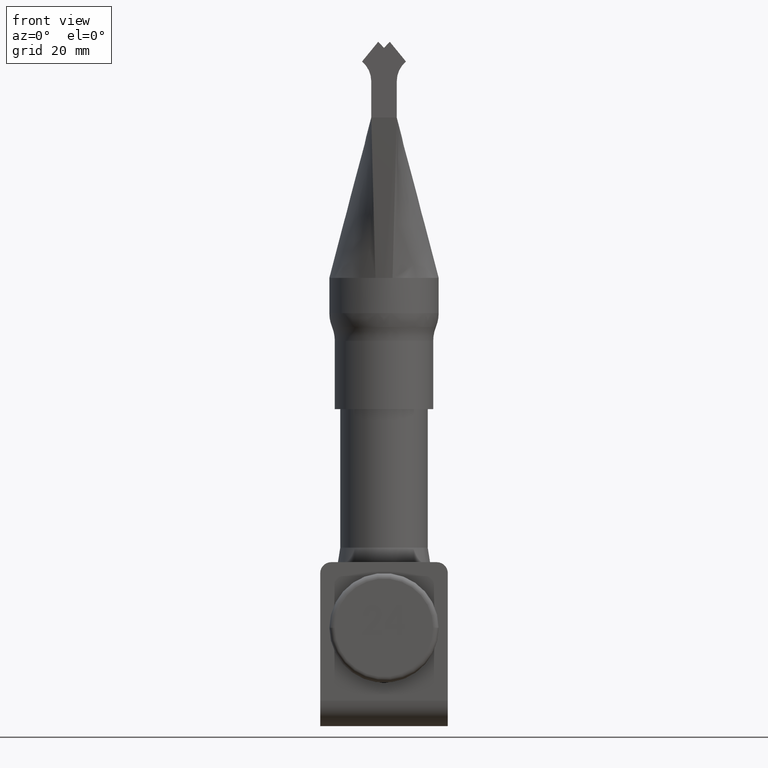
[diagram: clean part render]
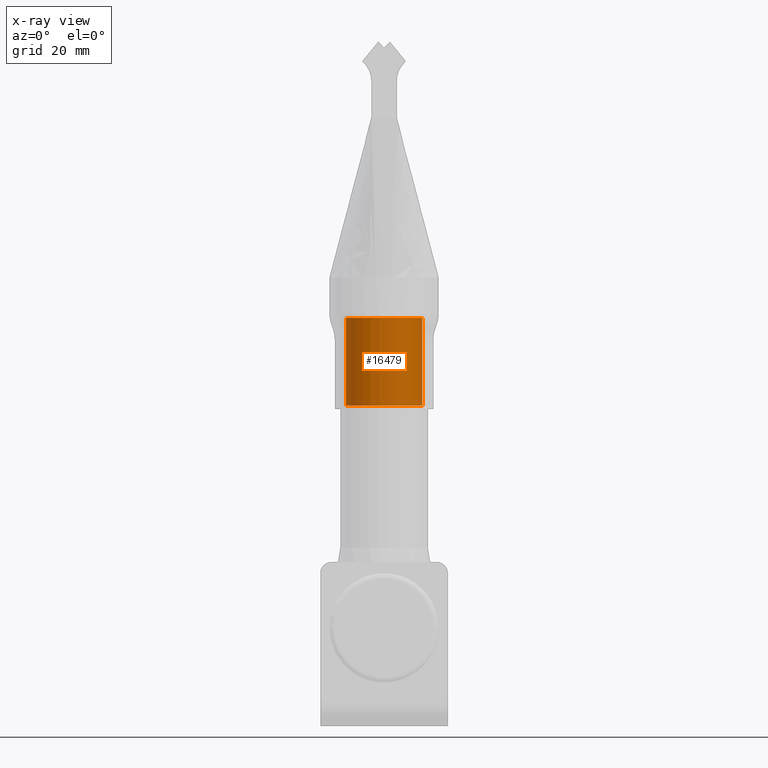
[diagram: x-ray — body ghosted, one internal face saturated and labeled with its STEP entity id]
A machine part, front view, then the same camera in x-ray: the body is ghosted and one INTERNAL B-rep face — a face not visible from any outside direction — is saturated and labeled: STEP entity #16479.
In plain terms, the highlighted cylindrical surface (partial cylindrical patch) has radius 10.5 mm, axis along (-0, -0, -1).
Its self-contained STEP definition (entity closure, byte-faithful):
#28 = AXIS2_PLACEMENT_3D ( 'NONE', #18074, #10447, #13994 ) ;
#185 = CARTESIAN_POINT ( 'NONE',  ( -10.49999999999999300, 0.0000000000000000000, 25.00000000000000000 ) ) ;
#1806 = CARTESIAN_POINT ( 'NONE',  ( 0.0000000000000000000, 0.0000000000000000000, 1.000000000000023500 ) ) ;
#2076 = CARTESIAN_POINT ( 'NONE',  ( 10.49999999999999500, 1.285879139104720200E-015, 0.0000000000000000000 ) ) ;
#4929 = VERTEX_POINT ( 'NONE', #20479 ) ;
#5261 = DIRECTION ( 'NONE',  ( -1.000000000000000000, 0.0000000000000000000, 0.0000000000000000000 ) ) ;
#5674 = AXIS2_PLACEMENT_3D ( 'NONE', #1806, #9406, #22876 ) ;
#6473 = EDGE_LOOP ( 'NONE', ( #11671, #17810, #11287, #24560 ) ) ;
#7134 = CIRCLE ( 'NONE', #5674, 10.49999999999999500 ) ;
#7762 = VECTOR ( 'NONE', #13466, 1000.000000000000000 ) ;
#8970 = CARTESIAN_POINT ( 'NONE',  ( -10.49999999999999500, 0.0000000000000000000, 0.0000000000000000000 ) ) ;
#9406 = DIRECTION ( 'NONE',  ( 0.0000000000000000000, 0.0000000000000000000, -1.000000000000000000 ) ) ;
#9452 = CARTESIAN_POINT ( 'NONE',  ( -10.49999999999999500, 0.0000000000000000000, 1.000000000000023500 ) ) ;
#10447 = DIRECTION ( 'NONE',  ( -0.0000000000000000000, -0.0000000000000000000, -1.000000000000000000 ) ) ;
#10782 = EDGE_CURVE ( 'NONE', #4929, #12767, #7134, .T. ) ;
#11270 = LINE ( 'NONE', #8970, #11543 ) ;
#11287 = ORIENTED_EDGE ( 'NONE', *, *, #10782, .T. ) ;
#11543 = VECTOR ( 'NONE', #14351, 1000.000000000000000 ) ;
#11594 = EDGE_CURVE ( 'NONE', #14140, #4929, #17083, .T. ) ;
#11671 = ORIENTED_EDGE ( 'NONE', *, *, #23628, .F. ) ;
#11977 = AXIS2_PLACEMENT_3D ( 'NONE', #24237, #14827, #5261 ) ;
#12489 = VERTEX_POINT ( 'NONE', #185 ) ;
#12767 = VERTEX_POINT ( 'NONE', #9452 ) ;
#13466 = DIRECTION ( 'NONE',  ( -0.0000000000000000000, -0.0000000000000000000, -1.000000000000000000 ) ) ;
#13688 = CYLINDRICAL_SURFACE ( 'NONE', #28, 10.49999999999999500 ) ;
#13994 = DIRECTION ( 'NONE',  ( -1.000000000000000000, 0.0000000000000000000, 0.0000000000000000000 ) ) ;
#14140 = VERTEX_POINT ( 'NONE', #19959 ) ;
#14209 = CIRCLE ( 'NONE', #11977, 10.49999999999999300 ) ;
#14351 = DIRECTION ( 'NONE',  ( -0.0000000000000000000, -0.0000000000000000000, -1.000000000000000000 ) ) ;
#14827 = DIRECTION ( 'NONE',  ( -0.0000000000000000000, -0.0000000000000000000, -1.000000000000000000 ) ) ;
#16479 = ADVANCED_FACE ( 'NONE', ( #22727 ), #13688, .F. ) ;
#17083 = LINE ( 'NONE', #2076, #7762 ) ;
#17810 = ORIENTED_EDGE ( 'NONE', *, *, #11594, .T. ) ;
#18074 = CARTESIAN_POINT ( 'NONE',  ( 0.0000000000000000000, 0.0000000000000000000, 0.0000000000000000000 ) ) ;
#19959 = CARTESIAN_POINT ( 'NONE',  ( 10.49999999999999300, 1.285879139104720000E-015, 25.00000000000000000 ) ) ;
#20479 = CARTESIAN_POINT ( 'NONE',  ( 10.49999999999999500, 1.285879139104720200E-015, 1.000000000000023500 ) ) ;
#22136 = EDGE_CURVE ( 'NONE', #12489, #12767, #11270, .T. ) ;
#22727 = FACE_OUTER_BOUND ( 'NONE', #6473, .T. ) ;
#22876 = DIRECTION ( 'NONE',  ( 1.000000000000000000, 0.0000000000000000000, 0.0000000000000000000 ) ) ;
#23628 = EDGE_CURVE ( 'NONE', #14140, #12489, #14209, .T. ) ;
#24237 = CARTESIAN_POINT ( 'NONE',  ( 0.0000000000000000000, 0.0000000000000000000, 25.00000000000000000 ) ) ;
#24560 = ORIENTED_EDGE ( 'NONE', *, *, #22136, .F. ) ;